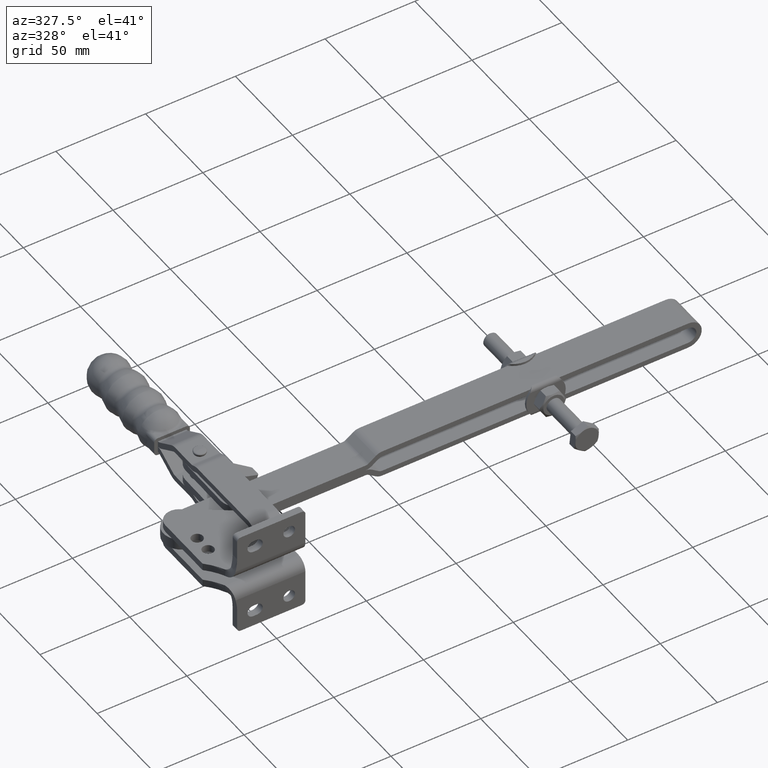
[diagram: clean part render]
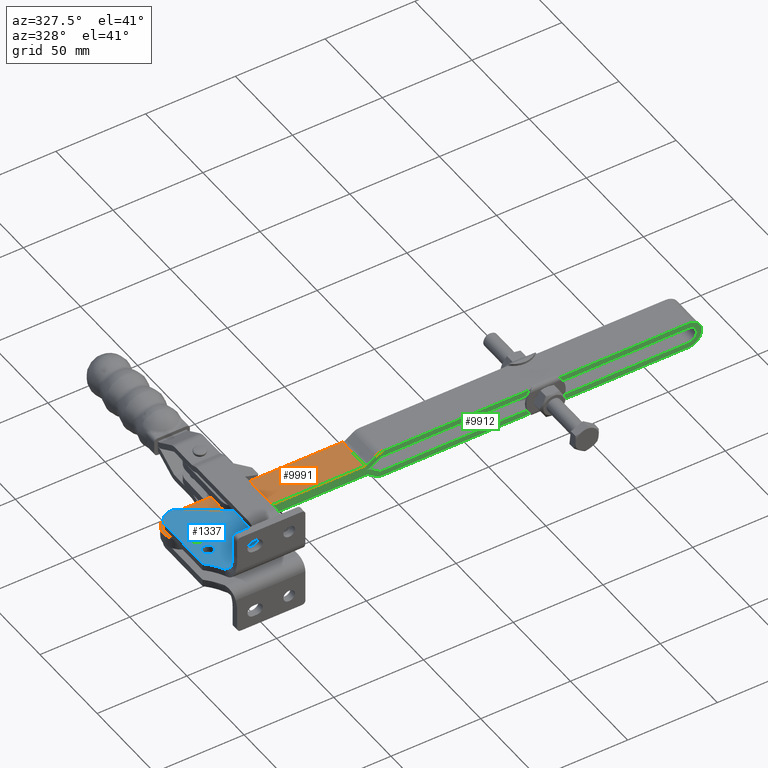
[diagram: same view with three faces highlighted in distinct colors, each labeled with its STEP entity id]
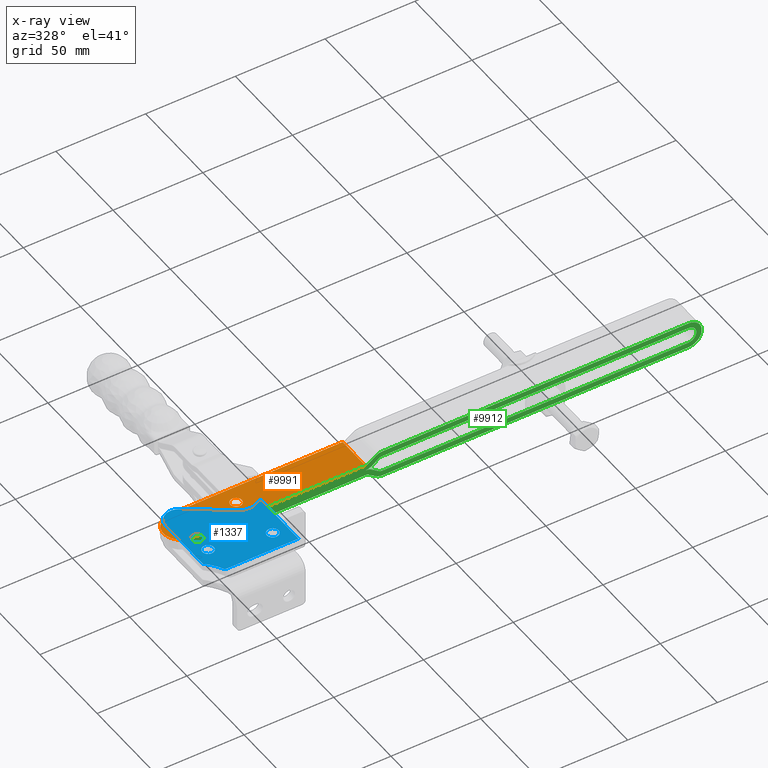
[diagram: x-ray of the same camera — body ghosted, the three highlighted faces saturated]
A machine part, auxiliary view with three faces highlighted in distinct colors.
The next image is the same camera in x-ray (body ghosted, the three faces saturated) — at least one of them is partly hidden behind the body in this view.
Their STEP definitions:

[orange] entity #9991 — the highlighted planar face has unit normal (0, 0, 1).
#9145=CARTESIAN_POINT('',(-15.270541927197245,56.386515567213991,6.000000000000015));
#9146=VERTEX_POINT('',#9145);
#9147=CARTESIAN_POINT('',(-18.445541924511492,56.386384974479483,6.000000000000016));
#9148=DIRECTION('',(-9.892124E-017,-4.068786E-021,-1.0));
#9149=DIRECTION('',(-0.999999999154097,-0.000041131569925,9.892124E-017));
#9150=AXIS2_PLACEMENT_3D('',#9147,#9148,#9149);
#9151=CIRCLE('',#9150,3.175000000000001);
#9152=EDGE_CURVE('',#9146,#9146,#9151,.T.);
#9173=CARTESIAN_POINT('',(16.479458045945425,56.38782149455912,6.000000000000013));
#9174=VERTEX_POINT('',#9173);
#9175=CARTESIAN_POINT('',(13.304458048631107,56.387690901824605,6.000000000000013));
#9176=DIRECTION('',(-9.892124E-017,-4.068786E-021,-1.0));
#9177=DIRECTION('',(-0.999999999154097,-0.000041131569925,9.892124E-017));
#9178=AXIS2_PLACEMENT_3D('',#9175,#9176,#9177);
#9179=CIRCLE('',#9178,3.175000000000001);
#9180=EDGE_CURVE('',#9174,#9174,#9179,.T.);
#9735=CARTESIAN_POINT('',(78.749598328848563,65.890382771226655,5.999999999999984));
#9736=VERTEX_POINT('',#9735);
#9744=CARTESIAN_POINT('',(78.750420960247013,45.890382788144706,5.999999999999984));
#9745=VERTEX_POINT('',#9744);
#9746=CARTESIAN_POINT('',(78.750420960247197,45.890382788144713,5.999999999999984));
#9747=DIRECTION('',(-0.000041131569925,0.999999999154097,0.0));
#9748=VECTOR('',#9747,20.000000000000004);
#9749=LINE('',#9746,#9748);
#9750=EDGE_CURVE('',#9745,#9736,#9749,.T.);
#9858=CARTESIAN_POINT('',(-17.445110043873274,45.886426114931368,5.999999999999935));
#9859=VERTEX_POINT('',#9858);
#9860=CARTESIAN_POINT('',(78.750420960247013,45.890382788144699,5.999999999999914));
#9861=DIRECTION('',(-0.999999999154097,-0.000041131569925,2.215933E-016));
#9862=VECTOR('',#9861,96.195531085492377);
#9863=LINE('',#9860,#9862);
#9864=EDGE_CURVE('',#9745,#9859,#9863,.T.);
#9918=CARTESIAN_POINT('',(-17.445932675271795,65.886426098013317,5.999999999999935));
#9919=VERTEX_POINT('',#9918);
#9920=CARTESIAN_POINT('',(-17.445521359572535,55.886426106472342,5.999999999999935));
#9921=DIRECTION('',(-3.745352E-025,9.105784E-021,-1.0));
#9922=DIRECTION('',(-0.000041131569925,0.999999999154097,9.105784E-021));
#9923=AXIS2_PLACEMENT_3D('',#9920,#9921,#9922);
#9924=CIRCLE('',#9923,9.999999999999973);
#9925=EDGE_CURVE('',#9859,#9919,#9924,.T.);
#9969=CARTESIAN_POINT('',(45.624074169702745,55.889020257953206,5.999999999999992));
#9970=DIRECTION('',(0.0,0.0,1.0));
#9971=DIRECTION('',(0.999999999154097,0.000041131569925,0.0));
#9972=AXIS2_PLACEMENT_3D('',#9969,#9970,#9971);
#9973=PLANE('',#9972);
#9974=ORIENTED_EDGE('',*,*,#9750,.T.);
#9975=CARTESIAN_POINT('',(78.749598328848549,65.890382771226655,5.999999999999985));
#9976=DIRECTION('',(-0.999999999154097,-0.000041131569925,2.215933E-016));
#9977=VECTOR('',#9976,96.195531085492405);
#9978=LINE('',#9975,#9977);
#9979=EDGE_CURVE('',#9736,#9919,#9978,.T.);
#9980=ORIENTED_EDGE('',*,*,#9979,.T.);
#9981=ORIENTED_EDGE('',*,*,#9925,.F.);
#9982=ORIENTED_EDGE('',*,*,#9864,.F.);
#9983=EDGE_LOOP('',(#9974,#9980,#9981,#9982));
#9984=FACE_OUTER_BOUND('',#9983,.T.);
#9985=ORIENTED_EDGE('',*,*,#9152,.T.);
#9986=EDGE_LOOP('',(#9985));
#9987=FACE_BOUND('',#9986,.T.);
#9988=ORIENTED_EDGE('',*,*,#9180,.T.);
#9989=EDGE_LOOP('',(#9988));
#9990=FACE_BOUND('',#9989,.T.);
#9991=ADVANCED_FACE('',(#9984,#9987,#9990),#9973,.T.);

[blue] entity #1337 — the highlighted planar face has unit normal (0, 0, 1).
#140=CARTESIAN_POINT('',(10.344458075488902,24.786384974479617,10.0));
#141=VERTEX_POINT('',#140);
#142=CARTESIAN_POINT('',(13.594458075488902,24.786384974479617,10.0));
#143=DIRECTION('',(0.0,0.0,-1.0));
#144=DIRECTION('',(1.0,0.0,0.0));
#145=AXIS2_PLACEMENT_3D('',#142,#143,#144);
#146=CIRCLE('',#145,3.250000000000001);
#147=EDGE_CURVE('',#141,#141,#146,.T.);
#1228=CARTESIAN_POINT('',(2.614458075488901,-10.885787924088294,10.000000000000002));
#1229=DIRECTION('',(0.0,0.0,1.0));
#1230=DIRECTION('',(1.0,0.0,0.0));
#1231=AXIS2_PLACEMENT_3D('',#1228,#1229,#1230);
#1232=PLANE('',#1231);
#1233=CARTESIAN_POINT('',(-19.374765813601307,14.787482068854017,10.000000000000002));
#1234=VERTEX_POINT('',#1233);
#1235=CARTESIAN_POINT('',(21.614458075489395,14.787482068854008,10.000000000000002));
#1236=VERTEX_POINT('',#1235);
#1237=CARTESIAN_POINT('',(-19.374765813601307,14.787482068854013,10.000000000000002));
#1238=DIRECTION('',(1.0,0.0,0.0));
#1239=VECTOR('',#1238,40.989223889090702);
#1240=LINE('',#1237,#1239);
#1241=EDGE_CURVE('',#1234,#1236,#1240,.T.);
#1242=ORIENTED_EDGE('',*,*,#1241,.T.);
#1243=CARTESIAN_POINT('',(21.614458075488905,46.641260848530706,10.000000000000002));
#1244=VERTEX_POINT('',#1243);
#1245=CARTESIAN_POINT('',(21.614458075490035,46.641260848530706,10.000000000000002));
#1246=DIRECTION('',(0.0,-1.0,0.0));
#1247=VECTOR('',#1246,31.853778779676695);
#1248=LINE('',#1245,#1247);
#1249=EDGE_CURVE('',#1244,#1236,#1248,.T.);
#1250=ORIENTED_EDGE('',*,*,#1249,.F.);
#1251=CARTESIAN_POINT('',(19.978217019642994,47.412751171772733,10.000000000000002));
#1252=VERTEX_POINT('',#1251);
#1253=CARTESIAN_POINT('',(20.614458075488908,46.641260848530706,10.000000000000002));
#1254=DIRECTION('',(0.0,0.0,-1.0));
#1255=DIRECTION('',(1.0,0.0,0.0));
#1256=AXIS2_PLACEMENT_3D('',#1253,#1254,#1255);
#1257=CIRCLE('',#1256,1.0);
#1258=EDGE_CURVE('',#1252,#1244,#1257,.T.);
#1259=ORIENTED_EDGE('',*,*,#1258,.F.);
#1260=CARTESIAN_POINT('',(8.68638830811785,46.918545447844771,10.000000000000002));
#1261=VERTEX_POINT('',#1260);
#1262=CARTESIAN_POINT('',(14.004458075488905,54.656384974479629,10.000000000000002));
#1263=DIRECTION('',(0.0,0.0,1.0));
#1264=DIRECTION('',(0.566406236924833,0.824126188622016,0.0));
#1265=AXIS2_PLACEMENT_3D('',#1262,#1263,#1264);
#1266=CIRCLE('',#1265,9.38914408189474);
#1267=EDGE_CURVE('',#1261,#1252,#1266,.T.);
#1268=ORIENTED_EDGE('',*,*,#1267,.F.);
#1269=CARTESIAN_POINT('',(-14.160678742174738,62.620899591405184,10.000000000000002));
#1270=VERTEX_POINT('',#1269);
#1271=CARTESIAN_POINT('',(-14.160678742174735,62.620899591405184,10.000000000000002));
#1272=DIRECTION('',(0.824126188622016,-0.566406236924833,0.0));
#1273=VECTOR('',#1272,27.722777610664377);
#1274=LINE('',#1271,#1273);
#1275=EDGE_CURVE('',#1270,#1261,#1274,.T.);
#1276=ORIENTED_EDGE('',*,*,#1275,.F.);
#1277=CARTESIAN_POINT('',(-26.010541924511095,56.38638497447964,10.000000000000002));
#1278=VERTEX_POINT('',#1277);
#1279=CARTESIAN_POINT('',(-18.445541924511101,56.38638497447964,10.000000000000002));
#1280=DIRECTION('',(0.0,0.0,-1.0));
#1281=DIRECTION('',(0.566406236924832,0.824126188622016,0.0));
#1282=AXIS2_PLACEMENT_3D('',#1279,#1280,#1281);
#1283=CIRCLE('',#1282,7.565000000000001);
#1284=EDGE_CURVE('',#1278,#1270,#1283,.T.);
#1285=ORIENTED_EDGE('',*,*,#1284,.F.);
#1286=CARTESIAN_POINT('',(-26.010541924511102,24.304519530184535,10.000000000000002));
#1287=VERTEX_POINT('',#1286);
#1288=CARTESIAN_POINT('',(-26.010541924511099,24.304519530184542,10.000000000000002));
#1289=DIRECTION('',(0.0,1.0,0.0));
#1290=VECTOR('',#1289,32.081865444295097);
#1291=LINE('',#1288,#1290);
#1292=EDGE_CURVE('',#1287,#1278,#1291,.T.);
#1293=ORIENTED_EDGE('',*,*,#1292,.F.);
#1294=CARTESIAN_POINT('',(-25.705953316916172,23.585907677155895,10.000000000000002));
#1295=VERTEX_POINT('',#1294);
#1296=CARTESIAN_POINT('',(-25.010541924511102,24.304519530184535,10.000000000000002));
#1297=DIRECTION('',(0.0,0.0,-1.0));
#1298=DIRECTION('',(-1.0,0.0,0.0));
#1299=AXIS2_PLACEMENT_3D('',#1296,#1297,#1298);
#1300=CIRCLE('',#1299,1.0);
#1301=EDGE_CURVE('',#1295,#1287,#1300,.T.);
#1302=ORIENTED_EDGE('',*,*,#1301,.F.);
#1303=CARTESIAN_POINT('',(-46.985541924511118,1.59638497447961,10.000000000000002));
#1304=DIRECTION('',(0.0,0.0,1.0));
#1305=DIRECTION('',(-1.0,0.0,0.0));
#1306=AXIS2_PLACEMENT_3D('',#1303,#1304,#1305);
#1307=CIRCLE('',#1306,30.600000000000009);
#1308=EDGE_CURVE('',#1234,#1295,#1307,.T.);
#1309=ORIENTED_EDGE('',*,*,#1308,.F.);
#1310=EDGE_LOOP('',(#1242,#1250,#1259,#1268,#1276,#1285,#1293,#1302,#1309));
#1311=FACE_OUTER_BOUND('',#1310,.T.);
#1312=ORIENTED_EDGE('',*,*,#147,.T.);
#1313=EDGE_LOOP('',(#1312));
#1314=FACE_BOUND('',#1313,.T.);
#1315=CARTESIAN_POINT('',(-15.200541924511095,40.66638497447962,10.000000000000002));
#1316=VERTEX_POINT('',#1315);
#1317=CARTESIAN_POINT('',(-18.385541924511095,40.66638497447962,10.000000000000002));
#1318=DIRECTION('',(0.0,0.0,-1.0));
#1319=DIRECTION('',(-1.0,0.0,0.0));
#1320=AXIS2_PLACEMENT_3D('',#1317,#1318,#1319);
#1321=CIRCLE('',#1320,3.185000000000001);
#1322=EDGE_CURVE('',#1316,#1316,#1321,.T.);
#1323=ORIENTED_EDGE('',*,*,#1322,.T.);
#1324=EDGE_LOOP('',(#1323));
#1325=FACE_BOUND('',#1324,.T.);
#1326=CARTESIAN_POINT('',(-15.200541924511096,31.046384974479619,10.000000000000002));
#1327=VERTEX_POINT('',#1326);
#1328=CARTESIAN_POINT('',(-18.385541924511099,31.046384974479619,10.000000000000002));
#1329=DIRECTION('',(0.0,0.0,-1.0));
#1330=DIRECTION('',(-1.0,0.0,0.0));
#1331=AXIS2_PLACEMENT_3D('',#1328,#1329,#1330);
#1332=CIRCLE('',#1331,3.185000000000001);
#1333=EDGE_CURVE('',#1327,#1327,#1332,.T.);
#1334=ORIENTED_EDGE('',*,*,#1333,.T.);
#1335=EDGE_LOOP('',(#1334));
#1336=FACE_BOUND('',#1335,.T.);
#1337=ADVANCED_FACE('',(#1311,#1314,#1325,#1336),#1232,.T.);

[green] entity #9912 — the highlighted planar face has unit normal (0, -1, -0).
#9268=CARTESIAN_POINT('',(258.6156504120483,45.897780927413265,10.499564478020522));
#9269=VERTEX_POINT('',#9268);
#9276=CARTESIAN_POINT('',(258.6156504120483,45.897780927413265,-4.500435521979486));
#9277=VERTEX_POINT('',#9276);
#9278=CARTESIAN_POINT('',(258.6156504120483,45.897780927413265,2.999564478020518));
#9279=DIRECTION('',(-0.000041131569926,0.999999999154097,0.0));
#9280=DIRECTION('',(0.0,0.0,-1.0));
#9281=AXIS2_PLACEMENT_3D('',#9278,#9279,#9280);
#9282=CIRCLE('',#9281,7.500000000000004);
#9283=EDGE_CURVE('',#9269,#9277,#9282,.T.);
#9310=CARTESIAN_POINT('',(258.6156504120483,45.897780927413265,-1.500435521979484));
#9311=VERTEX_POINT('',#9310);
#9318=CARTESIAN_POINT('',(258.6156504120483,45.897780927413265,7.499564478020519));
#9319=VERTEX_POINT('',#9318);
#9320=CARTESIAN_POINT('',(258.6156504120483,45.897780927413265,2.999564478020518));
#9321=DIRECTION('',(0.000041131569926,-0.999999999154097,0.0));
#9322=DIRECTION('',(0.0,0.0,-1.0));
#9323=AXIS2_PLACEMENT_3D('',#9320,#9321,#9322);
#9324=CIRCLE('',#9323,4.500000000000002);
#9325=EDGE_CURVE('',#9311,#9319,#9324,.T.);
#9342=CARTESIAN_POINT('',(88.014154092814266,45.890763820032134,-4.500435521979469));
#9343=VERTEX_POINT('',#9342);
#9344=CARTESIAN_POINT('',(88.014154092814351,45.890763820032141,-4.500435521979469));
#9345=DIRECTION('',(0.999999999154097,0.000041131569925,-9.891701E-017));
#9346=VECTOR('',#9345,170.60149646354631);
#9347=LINE('',#9344,#9346);
#9348=EDGE_CURVE('',#9343,#9277,#9347,.T.);
#9381=CARTESIAN_POINT('',(88.014154092814266,45.890763820032134,-1.500435521979467));
#9382=VERTEX_POINT('',#9381);
#9389=CARTESIAN_POINT('',(258.61565041204835,45.897780927413272,-1.500435521979484));
#9390=DIRECTION('',(-0.999999999154097,-0.000041131569925,9.891701E-017));
#9391=VECTOR('',#9390,170.60149646354631);
#9392=LINE('',#9389,#9391);
#9393=EDGE_CURVE('',#9311,#9382,#9392,.T.);
#9412=CARTESIAN_POINT('',(86.293424785216658,45.890693043734245,-0.957891654846439));
#9413=VERTEX_POINT('',#9412);
#9420=CARTESIAN_POINT('',(88.014154092814266,45.890763820032149,1.499564478020535));
#9421=DIRECTION('',(0.000041131569881,-0.999999999154097,0.0));
#9422=DIRECTION('',(0.0,0.0,-1.0));
#9423=AXIS2_PLACEMENT_3D('',#9420,#9421,#9422);
#9424=CIRCLE('',#9423,3.000000000000002);
#9425=EDGE_CURVE('',#9413,#9382,#9424,.T.);
#9446=CARTESIAN_POINT('',(84.57269547761905,45.890622267436342,-3.415347787713414));
#9447=VERTEX_POINT('',#9446);
#9448=CARTESIAN_POINT('',(88.014154092814266,45.890763820032149,1.499564478020535));
#9449=DIRECTION('',(-0.000041131569881,0.999999999154097,0.0));
#9450=DIRECTION('',(0.0,0.0,-1.0));
#9451=AXIS2_PLACEMENT_3D('',#9448,#9449,#9450);
#9452=CIRCLE('',#9451,6.000000000000004);
#9453=EDGE_CURVE('',#9343,#9447,#9452,.T.);
#9471=CARTESIAN_POINT('',(78.750420960246942,45.890382788144706,-0.000871043958962));
#9472=VERTEX_POINT('',#9471);
#9479=CARTESIAN_POINT('',(-17.445110043873168,45.886426114931368,-0.000871043958917));
#9480=VERTEX_POINT('',#9479);
#9481=CARTESIAN_POINT('',(-17.445110043873228,45.886426114931375,-0.000871043959024));
#9482=DIRECTION('',(0.999999999154097,0.000041131569925,-9.892057E-017));
#9483=VECTOR('',#9482,96.195531085492462);
#9484=LINE('',#9481,#9483);
#9485=EDGE_CURVE('',#9480,#9472,#9484,.T.);
#9517=CARTESIAN_POINT('',(-17.445110043873132,45.886426114931368,2.999128956041055));
#9518=VERTEX_POINT('',#9517);
#9519=CARTESIAN_POINT('',(-17.445110043873132,45.886426114931368,2.999128956041055));
#9520=DIRECTION('',(0.0,0.0,-1.0));
#9521=VECTOR('',#9520,3.000000000000001);
#9522=LINE('',#9519,#9521);
#9523=EDGE_CURVE('',#9518,#9480,#9522,.T.);
#9548=CARTESIAN_POINT('',(78.750420960247013,45.890382788144706,2.999128956041046));
#9549=VERTEX_POINT('',#9548);
#9565=CARTESIAN_POINT('',(78.750420960247027,45.890382788144706,2.999128956040975));
#9566=DIRECTION('',(-0.999999999154097,-0.000041131569925,1.015636E-016));
#9567=VECTOR('',#9566,96.195531085492348);
#9568=LINE('',#9565,#9567);
#9569=EDGE_CURVE('',#9549,#9518,#9568,.T.);
#9594=CARTESIAN_POINT('',(80.47115026784455,45.890453564442595,-0.543414911091962));
#9595=VERTEX_POINT('',#9594);
#9602=CARTESIAN_POINT('',(78.750420960247013,45.890382788144706,-3.000871043958935));
#9603=DIRECTION('',(0.000041131569925,-0.999999999154097,-1.355253E-020));
#9604=DIRECTION('',(0.573576435865856,0.000023592099299,0.819152044288992));
#9605=AXIS2_PLACEMENT_3D('',#9602,#9603,#9604);
#9606=CIRCLE('',#9605,3.000000000000002);
#9607=EDGE_CURVE('',#9595,#9472,#9606,.T.);
#9628=CARTESIAN_POINT('',(82.191879575442158,45.890524340740498,1.914041221775013));
#9629=VERTEX_POINT('',#9628);
#9630=CARTESIAN_POINT('',(78.750420960247013,45.890382788144706,-3.000871043958935));
#9631=DIRECTION('',(-0.000041131569925,0.999999999154097,1.355253E-020));
#9632=DIRECTION('',(0.573576435865856,0.000023592099299,0.819152044288992));
#9633=AXIS2_PLACEMENT_3D('',#9630,#9631,#9632);
#9634=CIRCLE('',#9633,6.000000000000004);
#9635=EDGE_CURVE('',#9549,#9629,#9634,.T.);
#9659=CARTESIAN_POINT('',(86.293424785216644,45.890693043734245,-0.957891654846321));
#9660=DIRECTION('',(-0.819152043596066,-0.000033693009589,0.57357643635105));
#9661=VECTOR('',#9660,5.007062170984475);
#9662=LINE('',#9659,#9661);
#9663=EDGE_CURVE('',#9413,#9629,#9662,.T.);
#9674=CARTESIAN_POINT('',(80.47115026784445,45.890453564442602,-0.543414911091872));
#9675=DIRECTION('',(0.819152043596066,0.000033693009589,-0.57357643635105));
#9676=VECTOR('',#9675,5.007062170984475);
#9677=LINE('',#9674,#9676);
#9678=EDGE_CURVE('',#9595,#9447,#9677,.T.);
#9695=CARTESIAN_POINT('',(84.572695477619121,45.890622267436342,9.414476743754504));
#9696=VERTEX_POINT('',#9695);
#9713=CARTESIAN_POINT('',(80.471150267844337,45.890453564442595,6.542543867133018));
#9714=VERTEX_POINT('',#9713);
#9721=CARTESIAN_POINT('',(84.572695477619092,45.890622267436342,9.414476743754584));
#9722=DIRECTION('',(-0.819152043596069,-0.000033693009589,-0.573576436351046));
#9723=VECTOR('',#9722,5.00706217098475);
#9724=LINE('',#9721,#9723);
#9725=EDGE_CURVE('',#9696,#9714,#9724,.T.);
#9744=CARTESIAN_POINT('',(78.750420960247013,45.890382788144706,5.999999999999984));
#9745=VERTEX_POINT('',#9744);
#9752=CARTESIAN_POINT('',(78.750420960246728,45.89038278814472,9.000000000000028));
#9753=DIRECTION('',(0.000041131569925,-0.999999999154097,1.587170E-016));
#9754=DIRECTION('',(0.573576435865856,0.000023592099299,-0.819152044288992));
#9755=AXIS2_PLACEMENT_3D('',#9752,#9753,#9754);
#9756=CIRCLE('',#9755,3.000000000000002);
#9757=EDGE_CURVE('',#9745,#9714,#9756,.T.);
#9779=CARTESIAN_POINT('',(82.191879575441945,45.890524340740498,4.08508773426608));
#9780=VERTEX_POINT('',#9779);
#9787=CARTESIAN_POINT('',(78.750420960246871,45.890382788144706,3.000000000000012));
#9788=VERTEX_POINT('',#9787);
#9789=CARTESIAN_POINT('',(78.750420960246728,45.89038278814472,9.000000000000028));
#9790=DIRECTION('',(-0.000041131569925,0.999999999154097,-1.587170E-016));
#9791=DIRECTION('',(0.573576435865856,0.000023592099299,-0.819152044288992));
#9792=AXIS2_PLACEMENT_3D('',#9789,#9790,#9791);
#9793=CIRCLE('',#9792,6.000000000000004);
#9794=EDGE_CURVE('',#9780,#9788,#9793,.T.);
#9812=CARTESIAN_POINT('',(86.293424785216729,45.890693043734245,6.957020610887565));
#9813=VERTEX_POINT('',#9812);
#9820=CARTESIAN_POINT('',(82.191879575441973,45.890524340740491,4.085087734266082));
#9821=DIRECTION('',(0.819152043596069,0.000033693009589,0.573576436351046));
#9822=VECTOR('',#9821,5.00706217098475);
#9823=LINE('',#9820,#9822);
#9824=EDGE_CURVE('',#9780,#9813,#9823,.T.);
#9836=CARTESIAN_POINT('',(113.59368515666888,45.891815946303623,-1.499564478020585));
#9837=DIRECTION('',(0.000041131569925,-0.999999999154097,-9.105784E-021));
#9838=DIRECTION('',(0.0,0.0,-1.0));
#9839=AXIS2_PLACEMENT_3D('',#9836,#9837,#9838);
#9840=PLANE('',#9839);
#9841=CARTESIAN_POINT('',(88.014154092814266,45.890763820032134,10.499564478020559));
#9842=VERTEX_POINT('',#9841);
#9843=CARTESIAN_POINT('',(258.61565041204835,45.897780927413272,10.49956447802052));
#9844=DIRECTION('',(-0.999999999154097,-0.000041131569925,2.290710E-016));
#9845=VECTOR('',#9844,170.60149646354634);
#9846=LINE('',#9843,#9845);
#9847=EDGE_CURVE('',#9269,#9842,#9846,.T.);
#9848=ORIENTED_EDGE('',*,*,#9847,.T.);
#9849=CARTESIAN_POINT('',(88.014154092814266,45.890763820032134,4.499564478020555));
#9850=DIRECTION('',(-0.000041131569925,0.999999999154097,0.0));
#9851=DIRECTION('',(0.0,0.0,1.0));
#9852=AXIS2_PLACEMENT_3D('',#9849,#9850,#9851);
#9853=CIRCLE('',#9852,6.000000000000004);
#9854=EDGE_CURVE('',#9696,#9842,#9853,.T.);
#9855=ORIENTED_EDGE('',*,*,#9854,.F.);
#9856=ORIENTED_EDGE('',*,*,#9725,.T.);
#9857=ORIENTED_EDGE('',*,*,#9757,.F.);
#9858=CARTESIAN_POINT('',(-17.445110043873274,45.886426114931368,5.999999999999935));
#9859=VERTEX_POINT('',#9858);
#9860=CARTESIAN_POINT('',(78.750420960247013,45.890382788144699,5.999999999999914));
#9861=DIRECTION('',(-0.999999999154097,-0.000041131569925,2.215933E-016));
#9862=VECTOR('',#9861,96.195531085492377);
#9863=LINE('',#9860,#9862);
#9864=EDGE_CURVE('',#9745,#9859,#9863,.T.);
#9865=ORIENTED_EDGE('',*,*,#9864,.T.);
#9866=CARTESIAN_POINT('',(-17.445110043873417,45.886426114931368,2.999999999999962));
#9867=VERTEX_POINT('',#9866);
#9868=CARTESIAN_POINT('',(-17.445110043873417,45.886426114931368,2.999999999999962));
#9869=DIRECTION('',(0.0,0.0,1.0));
#9870=VECTOR('',#9869,3.000000000000001);
#9871=LINE('',#9868,#9870);
#9872=EDGE_CURVE('',#9867,#9859,#9871,.T.);
#9873=ORIENTED_EDGE('',*,*,#9872,.F.);
#9874=CARTESIAN_POINT('',(-17.445110043873417,45.886426114931368,2.999999999999962));
#9875=DIRECTION('',(0.999999999154097,0.000041131569925,-2.215933E-016));
#9876=VECTOR('',#9875,96.195531085492377);
#9877=LINE('',#9874,#9876);
#9878=EDGE_CURVE('',#9867,#9788,#9877,.T.);
#9879=ORIENTED_EDGE('',*,*,#9878,.T.);
#9880=ORIENTED_EDGE('',*,*,#9794,.F.);
#9881=ORIENTED_EDGE('',*,*,#9824,.T.);
#9882=CARTESIAN_POINT('',(88.014154092814266,45.890763820032134,7.499564478020558));
#9883=VERTEX_POINT('',#9882);
#9884=CARTESIAN_POINT('',(88.014154092814266,45.890763820032134,4.499564478020555));
#9885=DIRECTION('',(0.000041131569925,-0.999999999154097,0.0));
#9886=DIRECTION('',(0.0,0.0,1.0));
#9887=AXIS2_PLACEMENT_3D('',#9884,#9885,#9886);
#9888=CIRCLE('',#9887,3.000000000000002);
#9889=EDGE_CURVE('',#9883,#9813,#9888,.T.);
#9890=ORIENTED_EDGE('',*,*,#9889,.F.);
#9891=CARTESIAN_POINT('',(88.014154092814323,45.890763820032149,7.499564478020557));
#9892=DIRECTION('',(0.999999999154097,0.000041131569925,-2.186587E-016));
#9893=VECTOR('',#9892,170.60149646354634);
#9894=LINE('',#9891,#9893);
#9895=EDGE_CURVE('',#9883,#9319,#9894,.T.);
#9896=ORIENTED_EDGE('',*,*,#9895,.T.);
#9897=ORIENTED_EDGE('',*,*,#9325,.F.);
#9898=ORIENTED_EDGE('',*,*,#9393,.T.);
#9899=ORIENTED_EDGE('',*,*,#9425,.F.);
#9900=ORIENTED_EDGE('',*,*,#9663,.T.);
#9901=ORIENTED_EDGE('',*,*,#9635,.F.);
#9902=ORIENTED_EDGE('',*,*,#9569,.T.);
#9903=ORIENTED_EDGE('',*,*,#9523,.T.);
#9904=ORIENTED_EDGE('',*,*,#9485,.T.);
#9905=ORIENTED_EDGE('',*,*,#9607,.F.);
#9906=ORIENTED_EDGE('',*,*,#9678,.T.);
#9907=ORIENTED_EDGE('',*,*,#9453,.F.);
#9908=ORIENTED_EDGE('',*,*,#9348,.T.);
#9909=ORIENTED_EDGE('',*,*,#9283,.F.);
#9910=EDGE_LOOP('',(#9848,#9855,#9856,#9857,#9865,#9873,#9879,#9880,#9881,#9890,#9896,#9897,#9898,#9899,#9900,#9901,#9902,#9903,#9904,#9905,#9906,#9907,#9908,#9909));
#9911=FACE_OUTER_BOUND('',#9910,.T.);
#9912=ADVANCED_FACE('',(#9911),#9840,.T.);